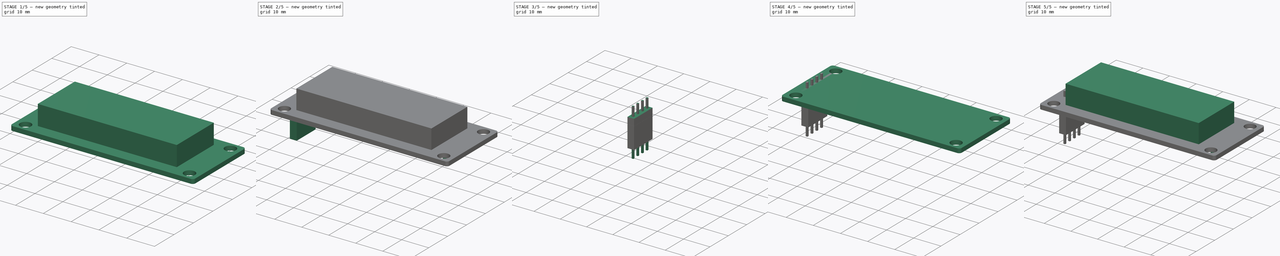
[diagram: build sequence overview — one tinted view per stage of 5, left to right]
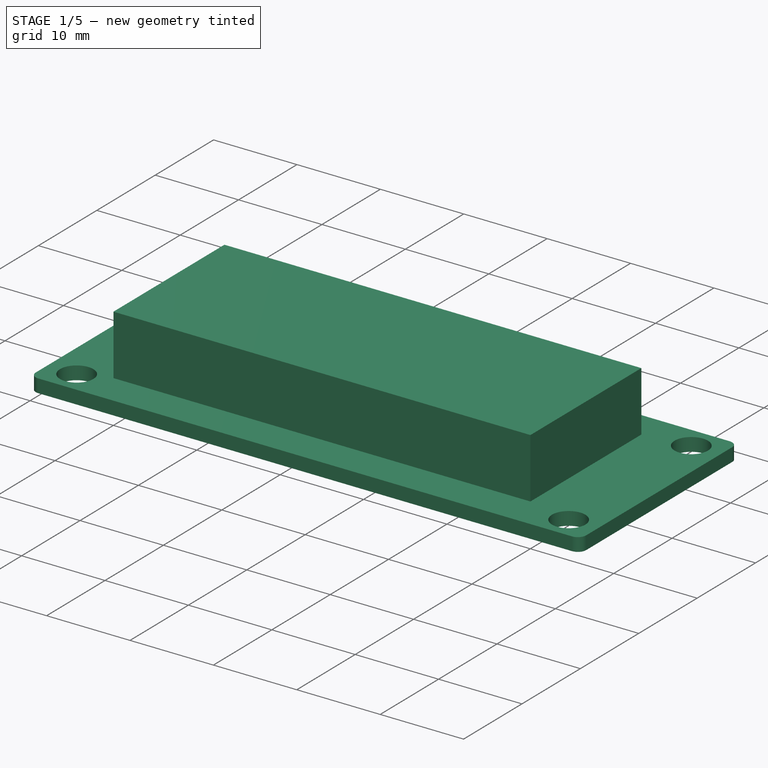
[diagram: stage 1 of 5 — iso view after this stage's code; geometry added in this stage tinted green]
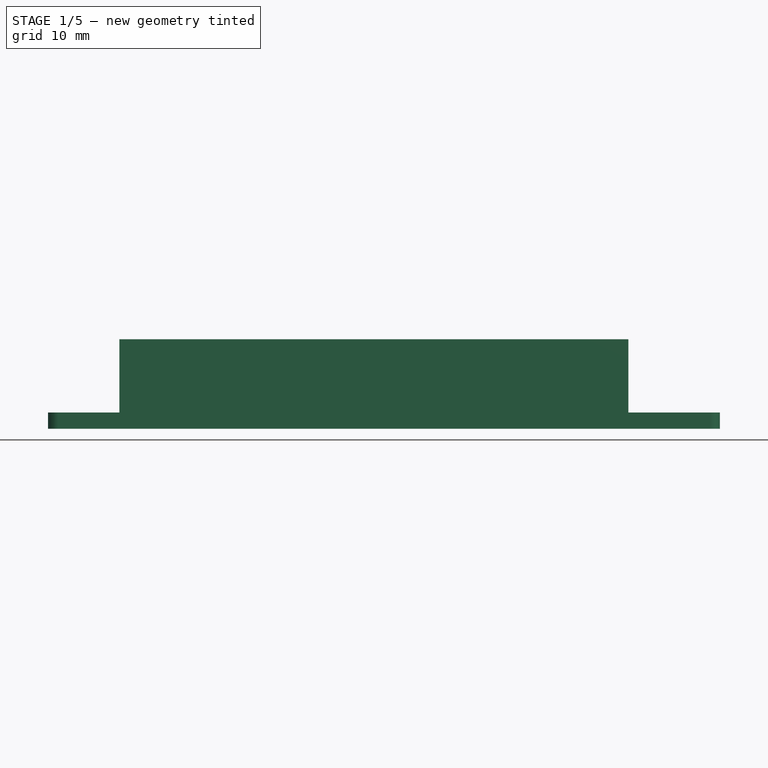
[diagram: stage 1 of 5 — front view after this stage's code; geometry added in this stage tinted green]
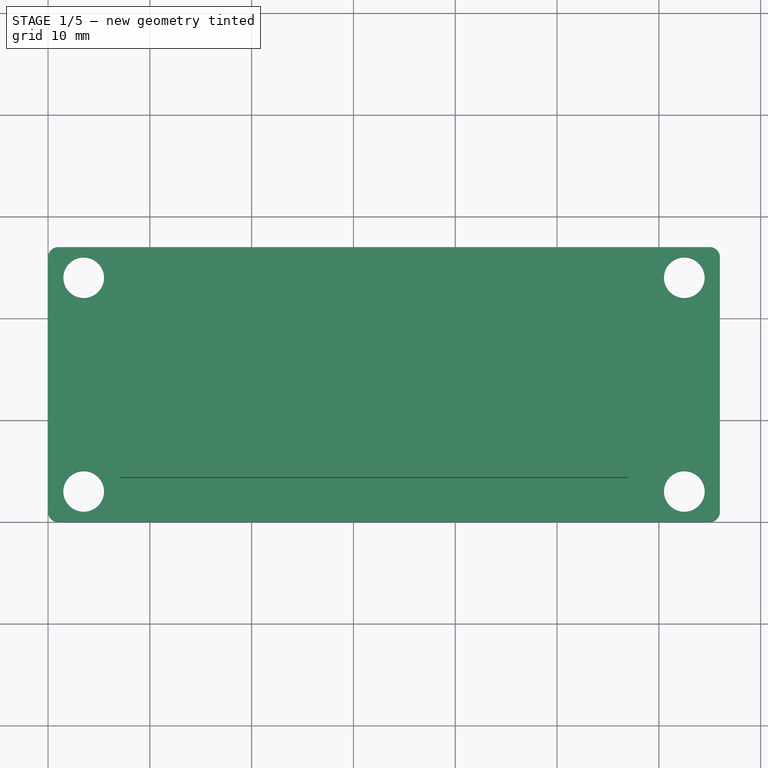
[diagram: stage 1 of 5 — top view after this stage's code; geometry added in this stage tinted green]
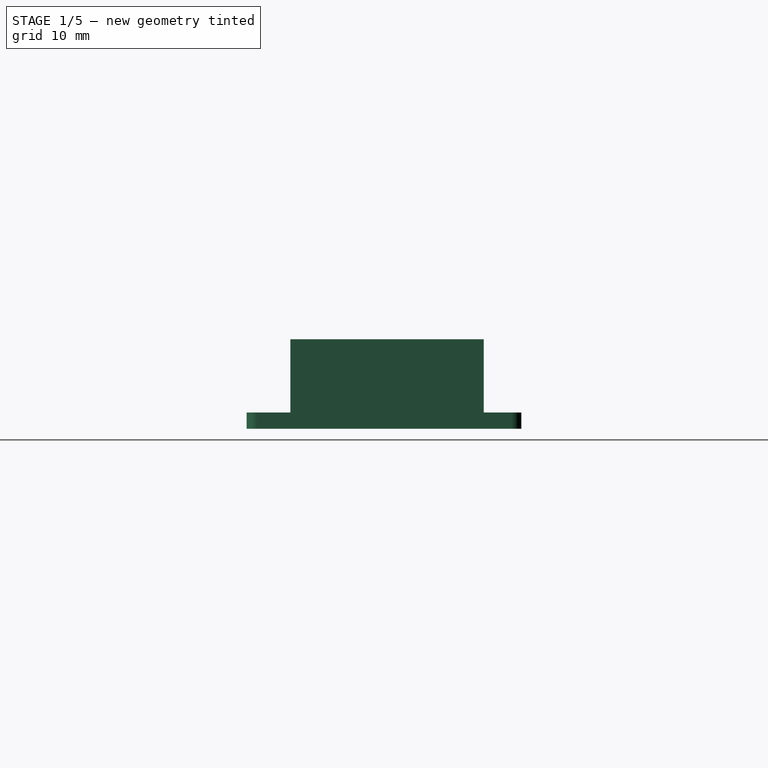
[diagram: stage 1 of 5 — right view after this stage's code; geometry added in this stage tinted green]
FCSTD DOCUMENT  (FreeCAD 0.18R4 (GitTag))
Label: tm1637_module
License: All rights reserved
LicenseURL: http://en.wikipedia.org/wiki/All_rights_reserved
objects: PartDesign::Body×10, Sketcher::SketchObject×9, PartDesign::Pad×8, PartDesign::Fillet×4, PartDesign::FeatureBase×3, Image::ImagePlane×1, Part::Extrusion×1
note: 43 computed .brp shape members not serialized (recipe doc carries the construction recipe); baked Part::Feature solids carry a one-line shape summary decoded from their .brp

FEATURE [Sketcher::SketchObject] Sketch002  label="board"
  sketch-geometry (8):
    g0: Circle CenterX=3.5 CenterY=3 CenterZ=0 NormalX=0 NormalY=0 NormalZ=1 AngleXU=0 Radius=2
    g1: Circle CenterX=3.5 CenterY=24 CenterZ=0 NormalX=0 NormalY=0 NormalZ=1 AngleXU=0 Radius=2
    g2: Circle CenterX=62.5 CenterY=24 CenterZ=0 NormalX=0 NormalY=0 NormalZ=1 AngleXU=0 Radius=2
    g3: Circle CenterX=62.5 CenterY=3 CenterZ=0 NormalX=0 NormalY=0 NormalZ=1 AngleXU=0 Radius=2
    g4: LineSegment StartX=0 StartY=0 StartZ=0 EndX=66 EndY=0 EndZ=0
    g5: LineSegment StartX=66 StartY=0 StartZ=0 EndX=66 EndY=27 EndZ=0
    g6: LineSegment StartX=66 StartY=27 StartZ=0 EndX=0 EndY=27 EndZ=0
    g7: LineSegment StartX=0 StartY=27 StartZ=0 EndX=0 EndY=0 EndZ=0
  constraints (14):
    c: Radius(g0) = 2
    c: Distance(g0,g-1) = 3
    c: Equal(g0,g1) = 2
    c: Distance(g3,g-1) = 3
    c: Coincident(g4,g5)
    c: Coincident(g5,g6)
    c: Coincident(g6,g7)
    c: Coincident(g7,g4)
    c: Horizontal(g4)
    c: Horizontal(g6)
    c: Vertical(g5)
    c: Vertical(g7)
    c: DistanceY(g7,g7) = 27
    c: DistanceX(g6,g6) = 66
FEATURE [PartDesign::Pad] Pad
  Length = 1.6
  Length2 = 100
  Profile = -> Sketch002
  Type = 0
FEATURE [PartDesign::Fillet] Fillet
  Base = -> Pad [Edge1,Edge8,Edge2,Edge5]
  BaseFeature = -> Pad
  Radius = 1
FEATURE [Sketcher::SketchObject] Sketch  label="led"
  AttachmentOffset = pos=(0,0,1.6) rot=(0,0,1;0rad)
  ExternalGeometry = -> [Fillet]
  MapMode = 5
  Placement = pos=(0,0,1.6) rot=(0,0,1;0rad)
  Support = -> [XY_Plane001]
  sketch-geometry (4):
    g0: LineSegment StartX=7 StartY=23.3 StartZ=0 EndX=57 EndY=23.3 EndZ=0
    g1: LineSegment StartX=57 StartY=23.3 StartZ=0 EndX=57 EndY=4.3 EndZ=0
    g2: LineSegment StartX=57 StartY=4.3 StartZ=0 EndX=7 EndY=4.3 EndZ=0
    g3: LineSegment StartX=7 StartY=4.3 StartZ=0 EndX=7 EndY=23.3 EndZ=0
  constraints (12):
    c: Coincident(g0,g1)
    c: Coincident(g1,g2)
    c: Coincident(g2,g3)
    c: Coincident(g3,g0)
    c: Horizontal(g0)
    c: Horizontal(g2)
    c: Vertical(g1)
    c: Vertical(g3)
    c: DistanceX(g0,g0) = 50
    c: DistanceY(g3,g3) = 19
    c: Distance(g2,g-2) = 7
    c: Distance(g0,g-4) = 3.7
FEATURE [PartDesign::Pad] Pad001
  BaseFeature = -> Fillet
  Length = 7.2
  Length2 = 100
  Profile = -> Sketch
  Type = 0
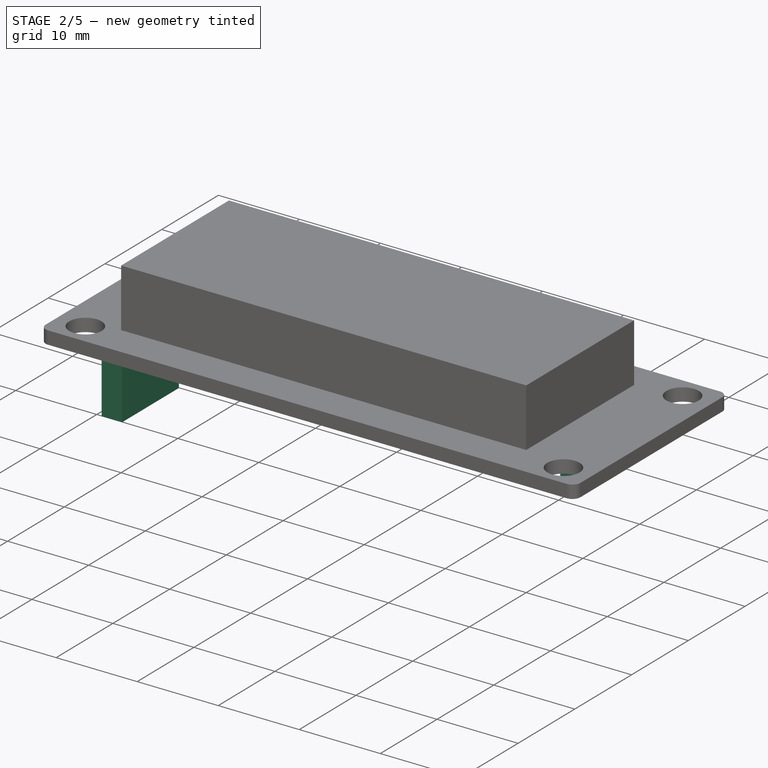
[diagram: stage 2 of 5 — iso view after this stage's code; geometry added in this stage tinted green]
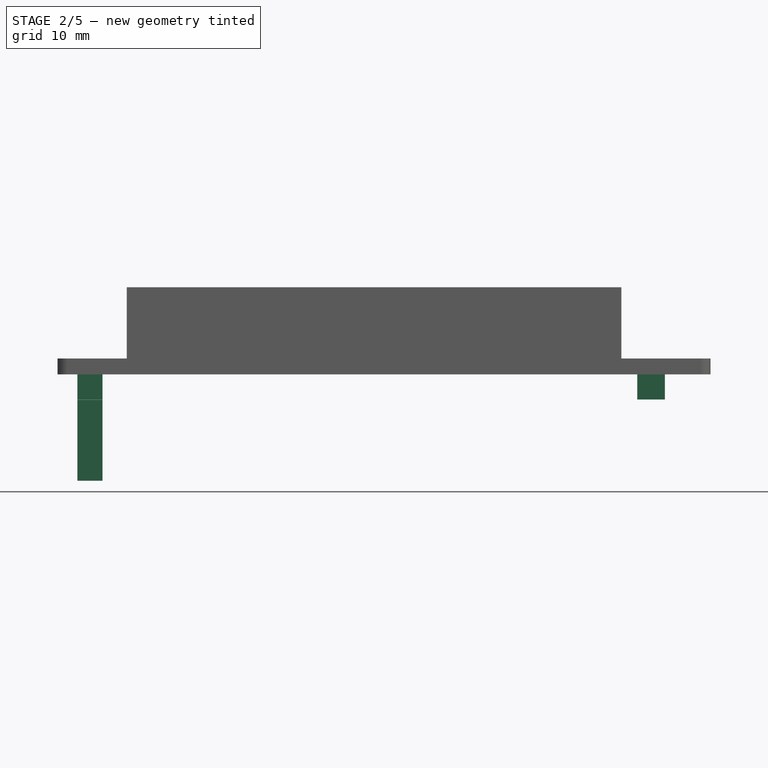
[diagram: stage 2 of 5 — front view after this stage's code; geometry added in this stage tinted green]
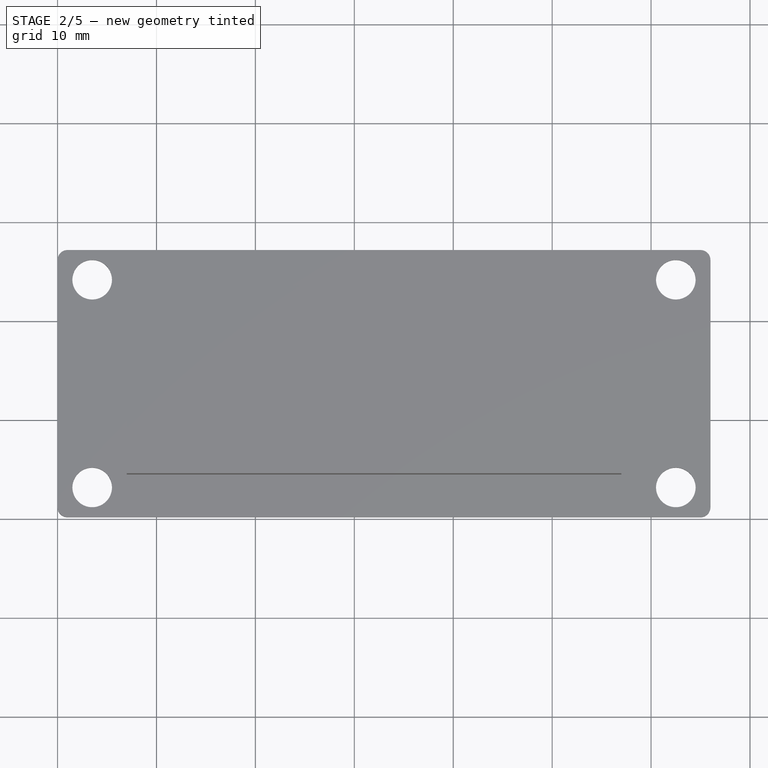
[diagram: stage 2 of 5 — top view after this stage's code; geometry added in this stage tinted green]
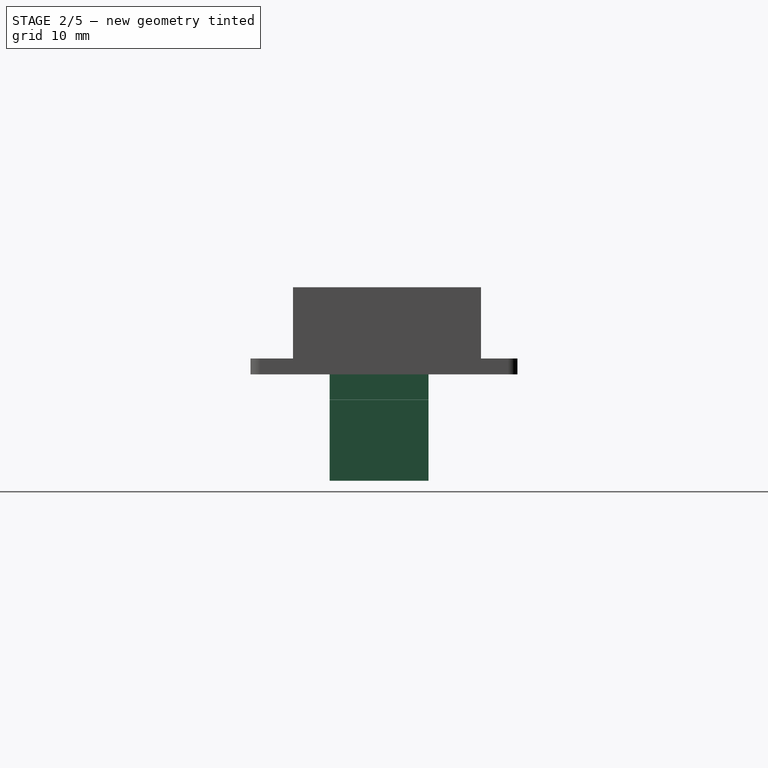
[diagram: stage 2 of 5 — right view after this stage's code; geometry added in this stage tinted green]
FEATURE [Sketcher::SketchObject] Sketch003  label="pins_0"
  ExternalGeometry = -> [Pad001]
  MapMode = 5
  Support = -> [XY_Plane001]
  sketch-geometry (8):
    g0: LineSegment StartX=2 StartY=18 StartZ=0 EndX=4.54 EndY=18 EndZ=0
    g1: LineSegment StartX=4.54 StartY=18 StartZ=0 EndX=4.54 EndY=8 EndZ=0
    g2: LineSegment StartX=4.54 StartY=8 StartZ=0 EndX=2 EndY=8 EndZ=0
    g3: LineSegment StartX=2 StartY=8 StartZ=0 EndX=2 EndY=18 EndZ=0
    g4: LineSegment StartX=58.6 StartY=18 StartZ=0 EndX=61.4 EndY=18 EndZ=0
    g5: LineSegment StartX=61.4 StartY=18 StartZ=0 EndX=61.4 EndY=8 EndZ=0
    g6: LineSegment StartX=61.4 StartY=8 StartZ=0 EndX=58.6 EndY=8 EndZ=0
    g7: LineSegment StartX=58.6 StartY=8 StartZ=0 EndX=58.6 EndY=18 EndZ=0
  constraints (21):
    c: Coincident(g0,g1)
    c: Coincident(g1,g2)
    c: Coincident(g2,g3)
    c: Coincident(g3,g0)
    c: Horizontal(g0)
    c: Horizontal(g2)
    c: Vertical(g1)
    c: Vertical(g3)
    c: DistanceY(g3,g3) = 10
    c: DistanceX(g0,g0) = 2.54
    c: Distance(g0,g-2) = 2
    c: Coincident(g4,g5)
    c: Coincident(g5,g6)
    c: Coincident(g6,g7)
    c: Coincident(g7,g4)
    c: Horizontal(g4)
    c: Horizontal(g6)
    c: Vertical(g5)
    c: Vertical(g7)
    c: DistanceX(g4,g4) = 2.8
    c: DistanceY(g7,g7) = 10
FEATURE [PartDesign::Pad] Pad002
  BaseFeature = -> Pad001
  Length = 2.54
  Length2 = 100
  Profile = -> Sketch003
  Reversed = true
  Type = 0
FEATURE [PartDesign::Body] Body004  label="pin_plastic_clone"
  Group = -> [Clone]
  Origin = -> Origin004
  Placement = pos=(57.62,0,0) rot=(0,0,1;0rad)
  Tip = -> Clone
FEATURE [PartDesign::Pad] Pad007
  Length = 8.2
  Length2 = 100
  Profile = -> Sketch007
  Reversed = true
  Type = 0
FEATURE [PartDesign::Body] Body008  label="extrude_clone"
  Group = -> [Clone001]
  Origin = -> Origin008
  Placement = pos=(57.6,0,0) rot=(0,0,1;0rad)
  Tip = -> Clone001
FEATURE [PartDesign::FeatureBase] Clone002
  BaseFeature = -> Body007
  Placement = pos=(0,0,-2.55) rot=(0,0,1;0rad)
FEATURE [PartDesign::Body] Body009  label="pin_plastic_extend_clone"
  Group = -> [Clone002]
  Origin = -> Origin009
  Placement = pos=(57.6,0,0) rot=(0,0,1;0rad)
  Tip = -> Clone002
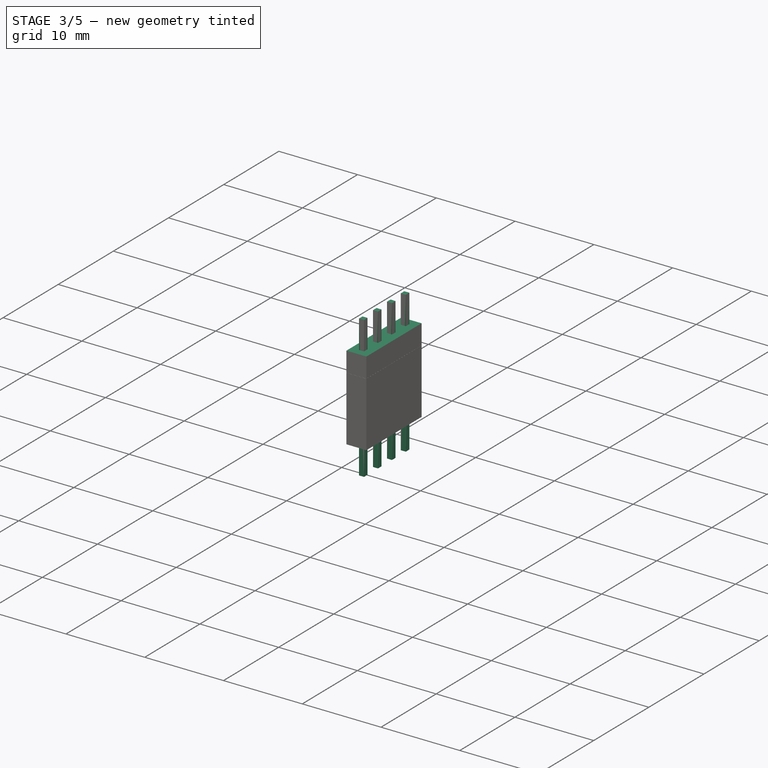
[diagram: stage 3 of 5 — iso view after this stage's code; geometry added in this stage tinted green]
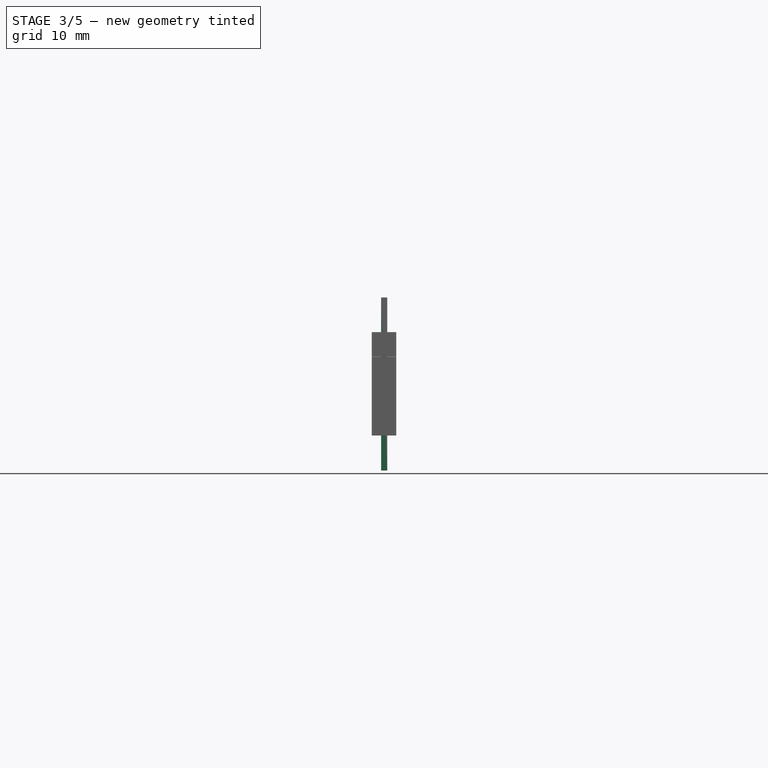
[diagram: stage 3 of 5 — front view after this stage's code; geometry added in this stage tinted green]
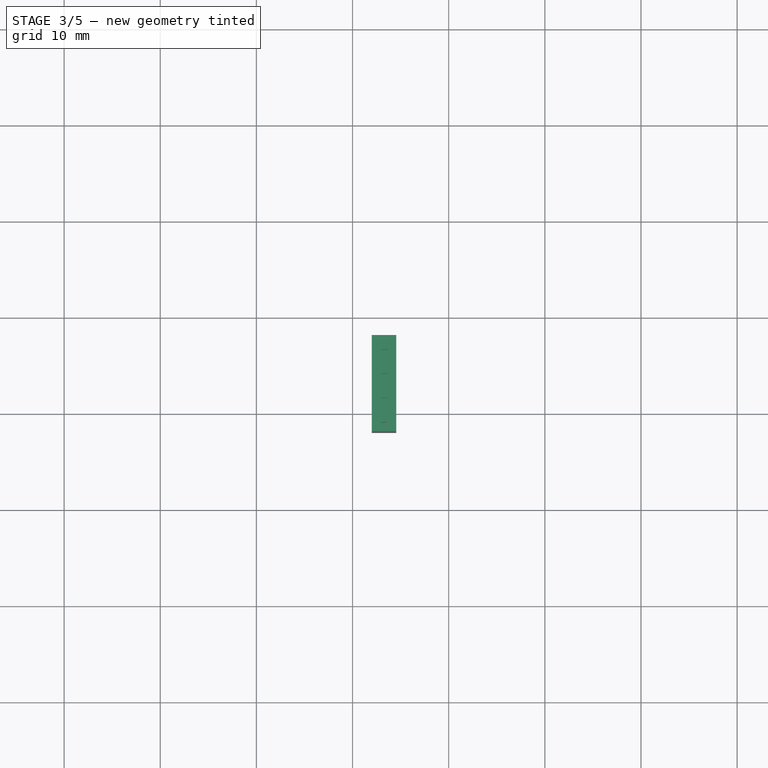
[diagram: stage 3 of 5 — top view after this stage's code; geometry added in this stage tinted green]
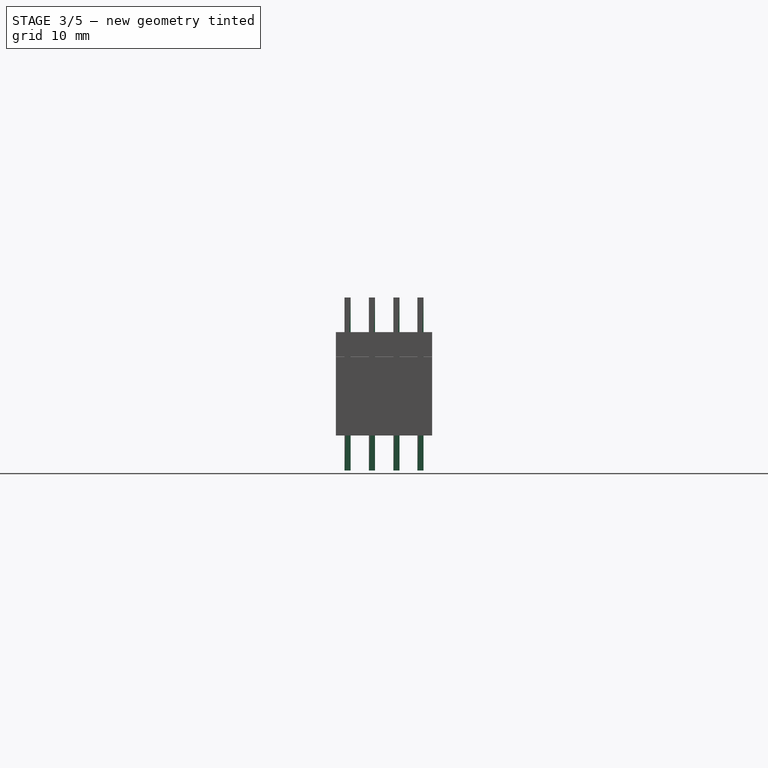
[diagram: stage 3 of 5 — right view after this stage's code; geometry added in this stage tinted green]
FEATURE [PartDesign::Fillet] Fillet001
  Base = -> Pad002 [Edge46,Edge49,Edge47,Edge51,Edge57,Edge54,Edge55,Edge59]
  BaseFeature = -> Pad002
  Radius = 0.5
FEATURE [PartDesign::Body] Body002  label="led001"
  Group = -> [Sketch006,Pad005]
  Origin = -> Origin002
  Tip = -> Pad005
FEATURE [Sketcher::SketchObject] Sketch007  label="pins_001"
  ExternalGeometry = -> [Pad001]
  MapMode = 5
  Support = -> [XY_Plane007]
  sketch-geometry (4):
    g0: LineSegment StartX=2 StartY=18 StartZ=0 EndX=4.54 EndY=18 EndZ=0
    g1: LineSegment StartX=4.54 StartY=18 StartZ=0 EndX=4.54 EndY=8 EndZ=0
    g2: LineSegment StartX=4.54 StartY=8 StartZ=0 EndX=2 EndY=8 EndZ=0
    g3: LineSegment StartX=2 StartY=8 StartZ=0 EndX=2 EndY=18 EndZ=0
  constraints (11):
    c: Coincident(g0,g1)
    c: Coincident(g1,g2)
    c: Coincident(g2,g3)
    c: Coincident(g3,g0)
    c: Horizontal(g0)
    c: Horizontal(g2)
    c: Vertical(g1)
    c: Vertical(g3)
    c: DistanceY(g3,g3) = 10
    c: DistanceX(g0,g0) = 2.54
    c: Distance(g0,g-2) = 2
FEATURE [PartDesign::Pad] Pad006
  Length = 2.54
  Length2 = 100
  Profile = -> Sketch007
  Reversed = true
  Type = 0
FEATURE [PartDesign::Body] Body007  label="pin_plastic_extend"
  Group = -> [Pad007]
  Origin = -> Origin007
  Placement = pos=(0,0,-2.55) rot=(0,0,1;0rad)
  Tip = -> Pad007
FEATURE [Part::Extrusion] Extrude
  Base = -> Sketch008
  Dir = (0,0,1)
  DirMode = 2
  FaceMakerClass = Part::FaceMakerBullseye
  LengthFwd = 18
  LengthRev = 0
  Placement = pos=(0,0,-18) rot=(0,0,1;0rad)
  Solid = true
  Symmetric = false
FEATURE [PartDesign::FeatureBase] Clone001
  BaseFeature = -> Extrude
  Placement = pos=(0,0,-18) rot=(0,0,1;0rad)
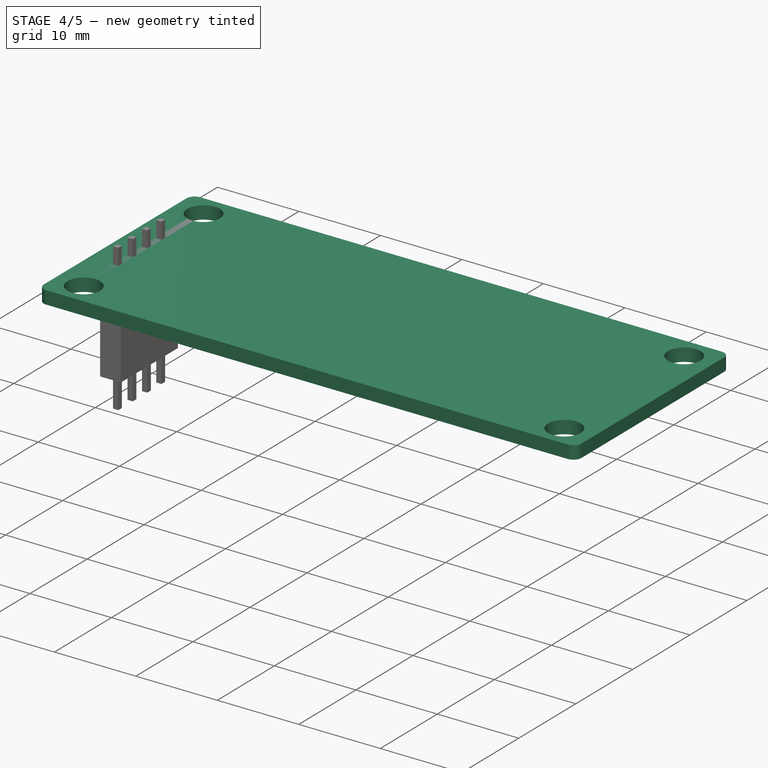
[diagram: stage 4 of 5 — iso view after this stage's code; geometry added in this stage tinted green]
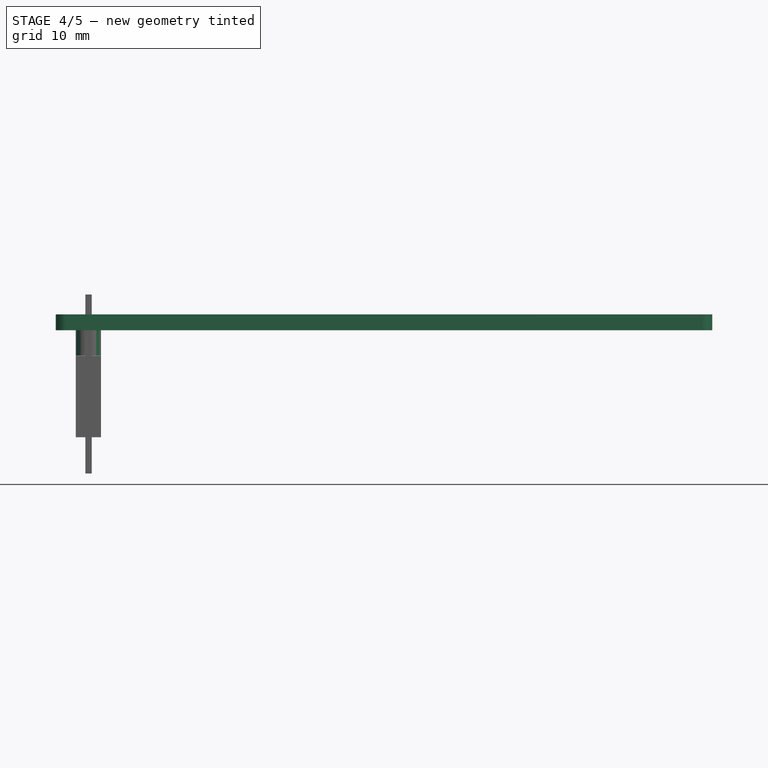
[diagram: stage 4 of 5 — front view after this stage's code; geometry added in this stage tinted green]
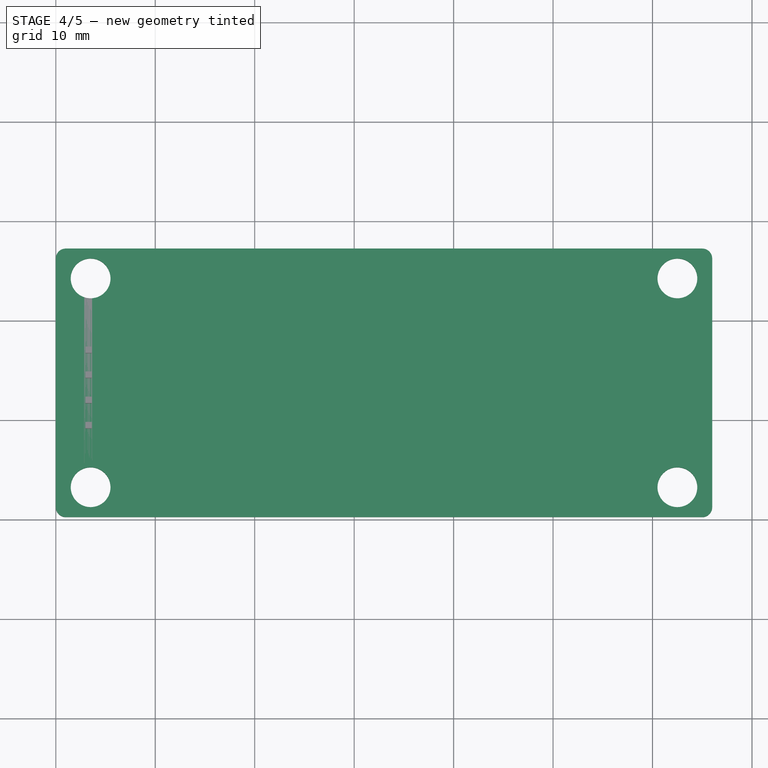
[diagram: stage 4 of 5 — top view after this stage's code; geometry added in this stage tinted green]
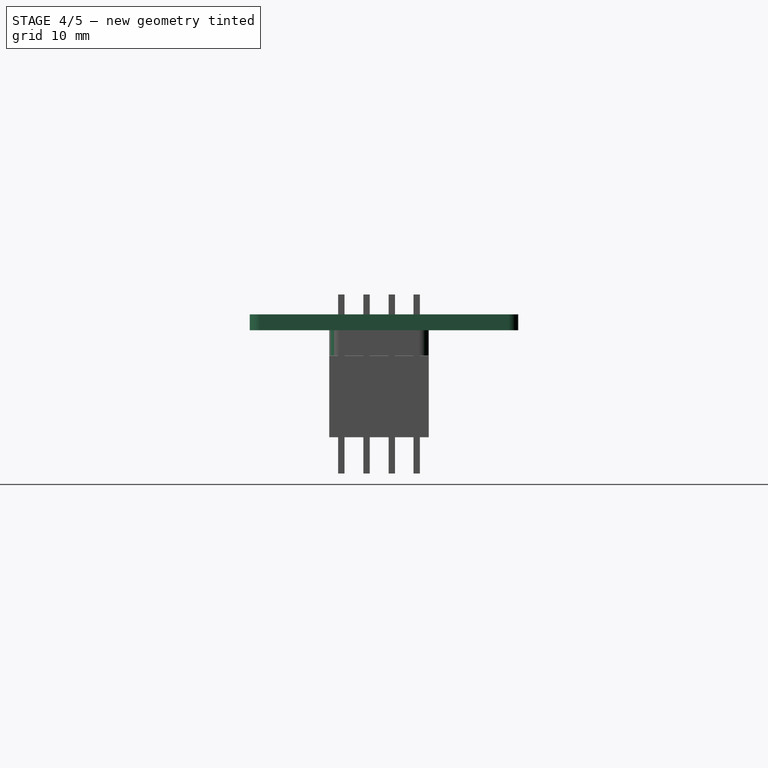
[diagram: stage 4 of 5 — right view after this stage's code; geometry added in this stage tinted green]
FEATURE [PartDesign::Body] Body
  Group = -> [Sketch002,Pad,Fillet,Sketch,Pad001,Sketch003,Pad002,Fillet001,Sketch004,Pad003]
  Origin = -> Origin001
  Tip = -> Pad003
FEATURE [Sketcher::SketchObject] Sketch005  label="board002"
  sketch-geometry (8):
    g0: Circle CenterX=3.5 CenterY=3 CenterZ=0 NormalX=0 NormalY=0 NormalZ=1 AngleXU=0 Radius=2
    g1: Circle CenterX=3.5 CenterY=24 CenterZ=0 NormalX=0 NormalY=0 NormalZ=1 AngleXU=0 Radius=2
    g2: Circle CenterX=62.5 CenterY=24 CenterZ=0 NormalX=0 NormalY=0 NormalZ=1 AngleXU=0 Radius=2
    g3: Circle CenterX=62.5 CenterY=3 CenterZ=0 NormalX=0 NormalY=0 NormalZ=1 AngleXU=0 Radius=2
    g4: LineSegment StartX=0 StartY=0 StartZ=0 EndX=66 EndY=0 EndZ=0
    g5: LineSegment StartX=66 StartY=0 StartZ=0 EndX=66 EndY=27 EndZ=0
    g6: LineSegment StartX=66 StartY=27 StartZ=0 EndX=0 EndY=27 EndZ=0
    g7: LineSegment StartX=0 StartY=27 StartZ=0 EndX=0 EndY=0 EndZ=0
  constraints (14):
    c: Radius(g0) = 2
    c: Distance(g0,g-1) = 3
    c: Equal(g0,g1) = 2
    c: Distance(g3,g-1) = 3
    c: Coincident(g4,g5)
    c: Coincident(g5,g6)
    c: Coincident(g6,g7)
    c: Coincident(g7,g4)
    c: Horizontal(g4)
    c: Horizontal(g6)
    c: Vertical(g5)
    c: Vertical(g7)
    c: DistanceY(g7,g7) = 27
    c: DistanceX(g6,g6) = 66
FEATURE [PartDesign::Pad] Pad004
  Length = 1.6
  Length2 = 100
  Profile = -> Sketch005
  Type = 0
FEATURE [Sketcher::SketchObject] Sketch008
  AttachmentOffset = pos=(0,0,3.6) rot=(0,0,1;0rad)
  ExternalGeometry = -> [Fillet001]
  MapMode = 5
  Placement = pos=(0,0,3.6) rot=(0,0,1;0rad)
  Support = -> [XY_Plane005]
  sketch-geometry (28):
    g0: LineSegment StartX=2.97 StartY=17.11 StartZ=0 EndX=3.61 EndY=17.11 EndZ=0
    g1: LineSegment StartX=3.61 StartY=17.11 StartZ=0 EndX=3.61 EndY=16.47 EndZ=0
    g2: LineSegment StartX=3.61 StartY=16.47 StartZ=0 EndX=2.97 EndY=16.47 EndZ=0
    g3: LineSegment StartX=2.97 StartY=16.47 StartZ=0 EndX=2.97 EndY=17.11 EndZ=0
    g4: LineSegment [constr] StartX=2.97 StartY=17.11 StartZ=0 EndX=3.61 EndY=16.47 EndZ=0
    g5: LineSegment [constr] StartX=3.61 StartY=17.11 StartZ=0 EndX=2.97 EndY=16.47 EndZ=0
    g6: GeomPoint X=3.29 Y=16.79 Z=0
    g7: LineSegment StartX=2.97 StartY=14.61 StartZ=0 EndX=3.61 EndY=14.61 EndZ=0
    g8: LineSegment StartX=3.61 StartY=14.61 StartZ=0 EndX=3.61 EndY=13.97 EndZ=0
    g9: LineSegment StartX=3.61 StartY=13.97 StartZ=0 EndX=2.97 EndY=13.97 EndZ=0
    g10: LineSegment StartX=2.97 StartY=13.97 StartZ=0 EndX=2.97 EndY=14.61 EndZ=0
    g11: LineSegment [constr] StartX=2.97 StartY=14.61 StartZ=0 EndX=3.61 EndY=13.97 EndZ=0
    g12: LineSegment [constr] StartX=3.61 StartY=14.61 StartZ=0 EndX=2.97 EndY=13.97 EndZ=0
    g13: GeomPoint X=3.29 Y=14.29 Z=0
    g14: LineSegment StartX=2.97 StartY=12.07 StartZ=0 EndX=3.61 EndY=12.07 EndZ=0
    g15: LineSegment StartX=3.61 StartY=12.07 StartZ=0 EndX=3.61 EndY=11.43 EndZ=0
    g16: LineSegment StartX=3.61 StartY=11.43 StartZ=0 EndX=2.97 EndY=11.43 EndZ=0
    g17: LineSegment StartX=2.97 StartY=11.43 StartZ=0 EndX=2.97 EndY=12.07 EndZ=0
    g18: LineSegment [constr] StartX=2.97 StartY=12.07 StartZ=0 EndX=3.61 EndY=11.43 EndZ=0
    g19: LineSegment [constr] StartX=3.61 StartY=12.07 StartZ=0 EndX=2.97 EndY=11.43 EndZ=0
    g20: GeomPoint X=3.29 Y=11.75 Z=0
    g21: LineSegment StartX=2.97 StartY=9.53 StartZ=0 EndX=3.61 EndY=9.53 EndZ=0
    g22: LineSegment StartX=3.61 StartY=9.53 StartZ=0 EndX=3.61 EndY=8.89 EndZ=0
    g23: LineSegment StartX=3.61 StartY=8.89 StartZ=0 EndX=2.97 EndY=8.89 EndZ=0
    g24: LineSegment StartX=2.97 StartY=8.89 StartZ=0 EndX=2.97 EndY=9.53 EndZ=0
    g25: LineSegment [constr] StartX=2.97 StartY=9.53 StartZ=0 EndX=3.61 EndY=8.89 EndZ=0
    g26: LineSegment [constr] StartX=3.61 StartY=9.53 StartZ=0 EndX=2.97 EndY=8.89 EndZ=0
    g27: GeomPoint X=3.29 Y=9.21 Z=0
  constraints (72):
    c: Coincident(g0,g1)
    c: Coincident(g1,g2)
    c: Coincident(g2,g3)
    c: Coincident(g3,g0)
    c: Horizontal(g0)
    c: Horizontal(g2)
    c: Vertical(g1)
    c: Vertical(g3)
    c: DistanceX(g0,g0) = 0.64
    c: Equal(g0,g1)
    c: Coincident(g0,g5)
    c: Coincident(g0,g4)
    c: Coincident(g1,g4)
    c: Coincident(g2,g5)
    c: PointOnObject(g6,g4)
    c: PointOnObject(g6,g5)
    c: Distance(g6,g-3) = 1.21
    c: Distance(g6,g-6) = 1.25
    c: Coincident(g7,g8)
    c: Coincident(g8,g9)
    c: Coincident(g9,g10)
    c: Coincident(g10,g7)
    c: Horizontal(g7)
    c: Horizontal(g9)
    c: Vertical(g8)
    c: Vertical(g10)
    c: Equal(g0,g7) = 0.64
    c: Equal(g7,g8)
    c: Coincident(g7,g12)
    c: Coincident(g7,g11)
    c: Coincident(g8,g11)
    c: Coincident(g9,g12)
    c: PointOnObject(g13,g11)
    c: PointOnObject(g13,g12)
    c: Distance(g6,g13) = 2.5
    c: Coincident(g14,g15)
    c: Coincident(g15,g16)
    c: Coincident(g16,g17)
    c: Coincident(g17,g14)
    c: Horizontal(g14)
    c: Horizontal(g16)
    c: Vertical(g15)
    c: Vertical(g17)
    c: Equal(g14,g15)
    c: Coincident(g14,g19)
    c: Coincident(g14,g18)
    c: Coincident(g15,g18)
    c: Coincident(g16,g19)
    c: PointOnObject(g20,g18)
    c: PointOnObject(g20,g19)
    c: Coincident(g21,g22)
    c: Coincident(g22,g23)
    c: Coincident(g23,g24)
    c: Coincident(g24,g21)
    c: Horizontal(g21)
    c: Horizontal(g23)
    c: Vertical(g22)
    c: Vertical(g24)
    c: Equal(g21,g22)
    c: Coincident(g21,g26)
    c: Coincident(g21,g25)
    c: Coincident(g22,g25)
    c: Coincident(g23,g26)
    c: PointOnObject(g27,g25)
    c: PointOnObject(g27,g26)
    c: Distance(g13,g20) = 2.54
    c: DistanceX(g14,g14) = 0.64
    c: DistanceX(g21,g21) = 0.64
    c: Distance(g13,g-6) = 1.25
    c: Distance(g20,g-6) = 1.25
    c: Distance(g27,g-6) = 1.25
    c: Distance(g20,g27) = 2.54
FEATURE [PartDesign::Body] Body005  label="pins"
  Group = -> [Sketch008]
  Origin = -> Origin005
FEATURE [Sketcher::SketchObject] Sketch009
  AttachmentOffset = pos=(0,0,3.6) rot=(0,0,1;0rad)
  ExternalGeometry = -> [Fillet001]
  MapMode = 5
  Placement = pos=(0,0,3.6) rot=(0,0,1;0rad)
  Support = -> [XY_Plane006]
  sketch-geometry (28):
    g0: LineSegment StartX=2.97 StartY=17.11 StartZ=0 EndX=3.61 EndY=17.11 EndZ=0
    g1: LineSegment StartX=3.61 StartY=17.11 StartZ=0 EndX=3.61 EndY=16.47 EndZ=0
    g2: LineSegment StartX=3.61 StartY=16.47 StartZ=0 EndX=2.97 EndY=16.47 EndZ=0
    g3: LineSegment StartX=2.97 StartY=16.47 StartZ=0 EndX=2.97 EndY=17.11 EndZ=0
    g4: LineSegment [constr] StartX=2.97 StartY=17.11 StartZ=0 EndX=3.61 EndY=16.47 EndZ=0
    g5: LineSegment [constr] StartX=3.61 StartY=17.11 StartZ=0 EndX=2.97 EndY=16.47 EndZ=0
    g6: GeomPoint X=3.29 Y=16.79 Z=0
    g7: LineSegment StartX=2.97 StartY=14.61 StartZ=0 EndX=3.61 EndY=14.61 EndZ=0
    g8: LineSegment StartX=3.61 StartY=14.61 StartZ=0 EndX=3.61 EndY=13.97 EndZ=0
    g9: LineSegment StartX=3.61 StartY=13.97 StartZ=0 EndX=2.97 EndY=13.97 EndZ=0
    g10: LineSegment StartX=2.97 StartY=13.97 StartZ=0 EndX=2.97 EndY=14.61 EndZ=0
    g11: LineSegment [constr] StartX=2.97 StartY=14.61 StartZ=0 EndX=3.61 EndY=13.97 EndZ=0
    g12: LineSegment [constr] StartX=3.61 StartY=14.61 StartZ=0 EndX=2.97 EndY=13.97 EndZ=0
    g13: GeomPoint X=3.29 Y=14.29 Z=0
    g14: LineSegment StartX=2.97 StartY=12.07 StartZ=0 EndX=3.61 EndY=12.07 EndZ=0
    g15: LineSegment StartX=3.61 StartY=12.07 StartZ=0 EndX=3.61 EndY=11.43 EndZ=0
    g16: LineSegment StartX=3.61 StartY=11.43 StartZ=0 EndX=2.97 EndY=11.43 EndZ=0
    g17: LineSegment StartX=2.97 StartY=11.43 StartZ=0 EndX=2.97 EndY=12.07 EndZ=0
    g18: LineSegment [constr] StartX=2.97 StartY=12.07 StartZ=0 EndX=3.61 EndY=11.43 EndZ=0
    g19: LineSegment [constr] StartX=3.61 StartY=12.07 StartZ=0 EndX=2.97 EndY=11.43 EndZ=0
    g20: GeomPoint X=3.29 Y=11.75 Z=0
    g21: LineSegment StartX=2.97 StartY=9.53 StartZ=0 EndX=3.61 EndY=9.53 EndZ=0
    g22: LineSegment StartX=3.61 StartY=9.53 StartZ=0 EndX=3.61 EndY=8.89 EndZ=0
    g23: LineSegment StartX=3.61 StartY=8.89 StartZ=0 EndX=2.97 EndY=8.89 EndZ=0
    g24: LineSegment StartX=2.97 StartY=8.89 StartZ=0 EndX=2.97 EndY=9.53 EndZ=0
    g25: LineSegment [constr] StartX=2.97 StartY=9.53 StartZ=0 EndX=3.61 EndY=8.89 EndZ=0
    g26: LineSegment [constr] StartX=3.61 StartY=9.53 StartZ=0 EndX=2.97 EndY=8.89 EndZ=0
    g27: GeomPoint X=3.29 Y=9.21 Z=0
  constraints (72):
    c: Coincident(g0,g1)
    c: Coincident(g1,g2)
    c: Coincident(g2,g3)
    c: Coincident(g3,g0)
    c: Horizontal(g0)
    c: Horizontal(g2)
    c: Vertical(g1)
    c: Vertical(g3)
    c: DistanceX(g0,g0) = 0.64
    c: Equal(g0,g1)
    c: Coincident(g0,g5)
    c: Coincident(g0,g4)
    c: Coincident(g1,g4)
    c: Coincident(g2,g5)
    c: PointOnObject(g6,g4)
    c: PointOnObject(g6,g5)
    c: Distance(g6,g-3) = 1.21
    c: Distance(g6,g-6) = 1.25
    c: Coincident(g7,g8)
    c: Coincident(g8,g9)
    c: Coincident(g9,g10)
    c: Coincident(g10,g7)
    c: Horizontal(g7)
    c: Horizontal(g9)
    c: Vertical(g8)
    c: Vertical(g10)
    c: Equal(g0,g7) = 0.64
    c: Equal(g7,g8)
    c: Coincident(g7,g12)
    c: Coincident(g7,g11)
    c: Coincident(g8,g11)
    c: Coincident(g9,g12)
    c: PointOnObject(g13,g11)
    c: PointOnObject(g13,g12)
    c: Distance(g6,g13) = 2.5
    c: Coincident(g14,g15)
    c: Coincident(g15,g16)
    c: Coincident(g16,g17)
    c: Coincident(g17,g14)
    c: Horizontal(g14)
    c: Horizontal(g16)
    c: Vertical(g15)
    c: Vertical(g17)
    c: Equal(g14,g15)
    c: Coincident(g14,g19)
    c: Coincident(g14,g18)
    c: Coincident(g15,g18)
    c: Coincident(g16,g19)
    c: PointOnObject(g20,g18)
    c: PointOnObject(g20,g19)
    c: Coincident(g21,g22)
    c: Coincident(g22,g23)
    c: Coincident(g23,g24)
    c: Coincident(g24,g21)
    c: Horizontal(g21)
    c: Horizontal(g23)
    c: Vertical(g22)
    c: Vertical(g24)
    c: Equal(g21,g22)
    c: Coincident(g21,g26)
    c: Coincident(g21,g25)
    c: Coincident(g22,g25)
    c: Coincident(g23,g26)
    c: PointOnObject(g27,g25)
    c: PointOnObject(g27,g26)
    c: Distance(g13,g20) = 2.54
    c: DistanceX(g14,g14) = 0.64
    c: DistanceX(g21,g21) = 0.64
    c: Distance(g13,g-6) = 1.25
    c: Distance(g20,g-6) = 1.25
    c: Distance(g27,g-6) = 1.25
    c: Distance(g20,g27) = 2.54
FEATURE [PartDesign::Body] Body006  label="pins001"
  Group = -> [Sketch009]
  Origin = -> Origin006
  Placement = pos=(57.56,0,0) rot=(0,0,1;0rad)
FEATURE [Image::ImagePlane] ImagePlane
  Placement = pos=(32,13.6,9) rot=(0,0,1;0rad)
  XSize = 50
  YSize = 19
FEATURE [PartDesign::Fillet] Fillet002
  Base = -> Pad004 [Edge8,Edge1,Edge2,Edge5]
  BaseFeature = -> Pad004
  Radius = 1
FEATURE [PartDesign::Body] Body001  label="board001"
  Group = -> [Pad004,Sketch005,Fillet002]
  Origin = -> Origin
  Tip = -> Fillet002
FEATURE [PartDesign::Fillet] Fillet003
  Base = -> Pad006 [Edge8,Edge1,Edge5,Edge2]
  BaseFeature = -> Pad006
  Radius = 1
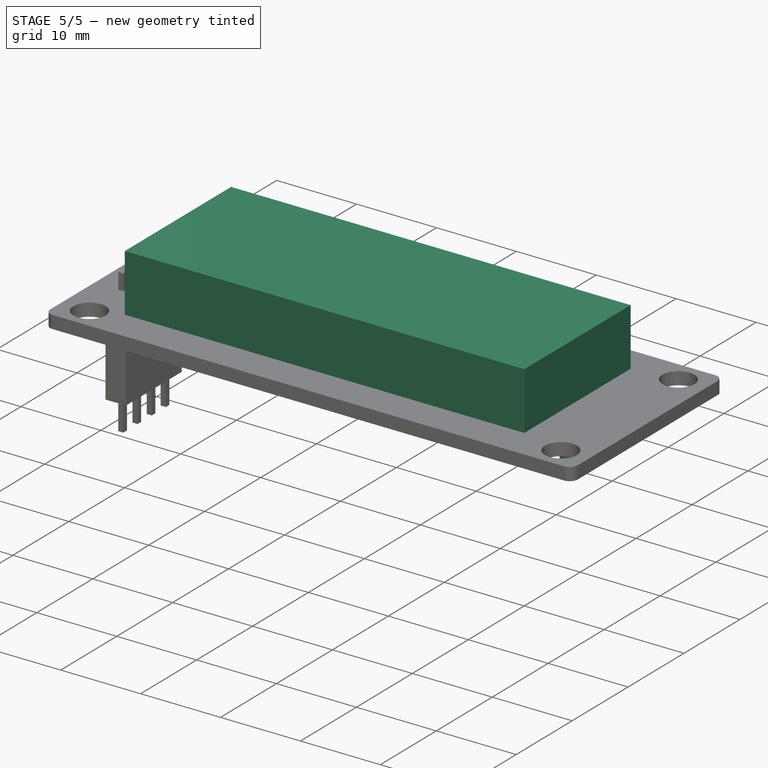
[diagram: stage 5 of 5 — iso view after this stage's code; geometry added in this stage tinted green]
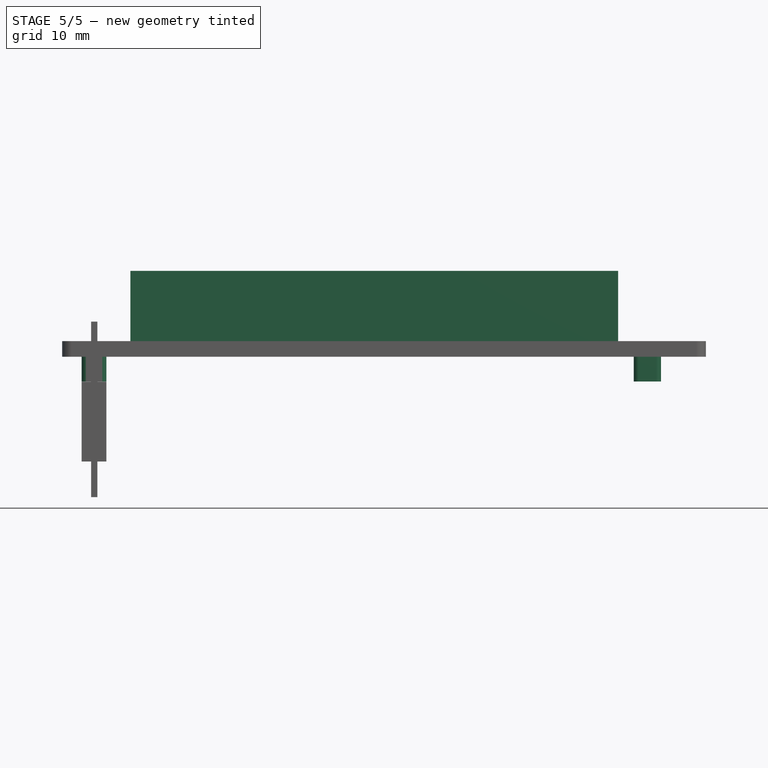
[diagram: stage 5 of 5 — front view after this stage's code; geometry added in this stage tinted green]
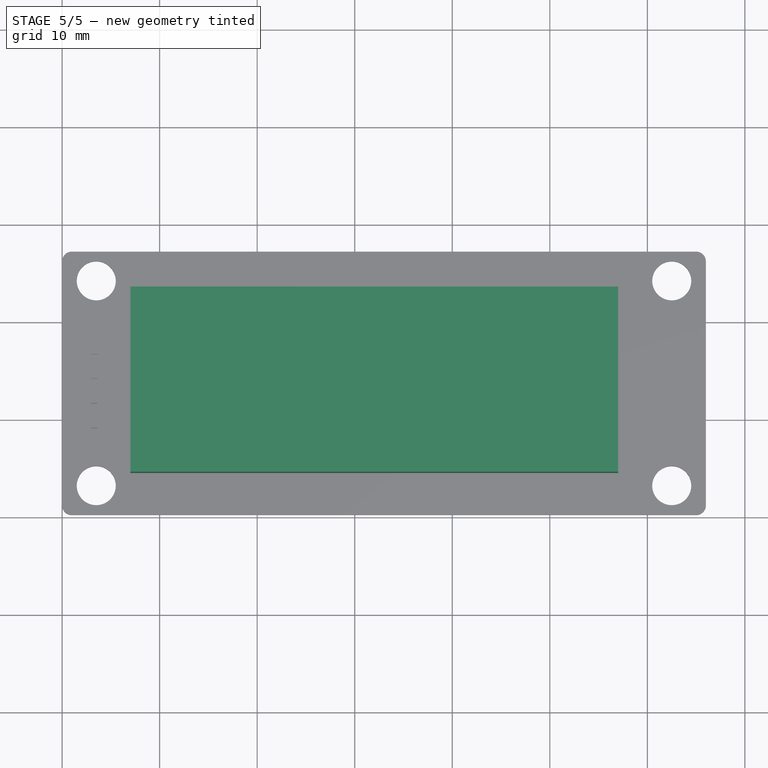
[diagram: stage 5 of 5 — top view after this stage's code; geometry added in this stage tinted green]
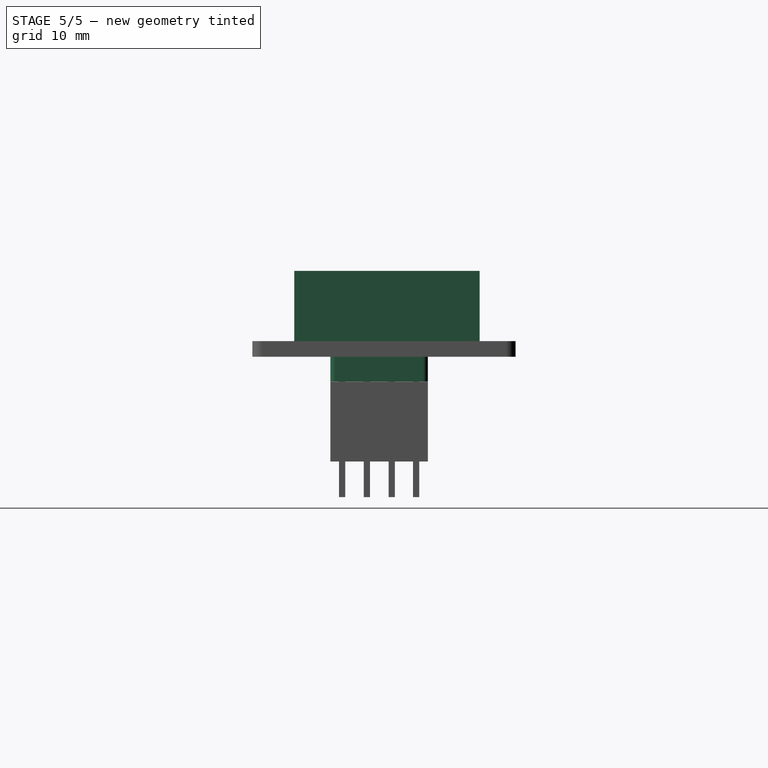
[diagram: stage 5 of 5 — right view after this stage's code; geometry added in this stage tinted green]
FEATURE [Sketcher::SketchObject] Sketch004
  AttachmentOffset = pos=(0,0,3.6) rot=(0,0,1;0rad)
  ExternalGeometry = -> [Fillet001]
  MapMode = 5
  Placement = pos=(0,0,3.6) rot=(0,0,1;0rad)
  Support = -> [XY_Plane001]
  sketch-geometry (28):
    g0: LineSegment StartX=2.97 StartY=17.11 StartZ=0 EndX=3.61 EndY=17.11 EndZ=0
    g1: LineSegment StartX=3.61 StartY=17.11 StartZ=0 EndX=3.61 EndY=16.47 EndZ=0
    g2: LineSegment StartX=3.61 StartY=16.47 StartZ=0 EndX=2.97 EndY=16.47 EndZ=0
    g3: LineSegment StartX=2.97 StartY=16.47 StartZ=0 EndX=2.97 EndY=17.11 EndZ=0
    g4: LineSegment [constr] StartX=2.97 StartY=17.11 StartZ=0 EndX=3.61 EndY=16.47 EndZ=0
    g5: LineSegment [constr] StartX=3.61 StartY=17.11 StartZ=0 EndX=2.97 EndY=16.47 EndZ=0
    g6: GeomPoint X=3.29 Y=16.79 Z=0
    g7: LineSegment StartX=2.97 StartY=14.61 StartZ=0 EndX=3.61 EndY=14.61 EndZ=0
    g8: LineSegment StartX=3.61 StartY=14.61 StartZ=0 EndX=3.61 EndY=13.97 EndZ=0
    g9: LineSegment StartX=3.61 StartY=13.97 StartZ=0 EndX=2.97 EndY=13.97 EndZ=0
    g10: LineSegment StartX=2.97 StartY=13.97 StartZ=0 EndX=2.97 EndY=14.61 EndZ=0
    g11: LineSegment [constr] StartX=2.97 StartY=14.61 StartZ=0 EndX=3.61 EndY=13.97 EndZ=0
    g12: LineSegment [constr] StartX=3.61 StartY=14.61 StartZ=0 EndX=2.97 EndY=13.97 EndZ=0
    g13: GeomPoint X=3.29 Y=14.29 Z=0
    g14: LineSegment StartX=2.97 StartY=12.07 StartZ=0 EndX=3.61 EndY=12.07 EndZ=0
    g15: LineSegment StartX=3.61 StartY=12.07 StartZ=0 EndX=3.61 EndY=11.43 EndZ=0
    g16: LineSegment StartX=3.61 StartY=11.43 StartZ=0 EndX=2.97 EndY=11.43 EndZ=0
    g17: LineSegment StartX=2.97 StartY=11.43 StartZ=0 EndX=2.97 EndY=12.07 EndZ=0
    g18: LineSegment [constr] StartX=2.97 StartY=12.07 StartZ=0 EndX=3.61 EndY=11.43 EndZ=0
    g19: LineSegment [constr] StartX=3.61 StartY=12.07 StartZ=0 EndX=2.97 EndY=11.43 EndZ=0
    g20: GeomPoint X=3.29 Y=11.75 Z=0
    g21: LineSegment StartX=2.97 StartY=9.53 StartZ=0 EndX=3.61 EndY=9.53 EndZ=0
    g22: LineSegment StartX=3.61 StartY=9.53 StartZ=0 EndX=3.61 EndY=8.89 EndZ=0
    g23: LineSegment StartX=3.61 StartY=8.89 StartZ=0 EndX=2.97 EndY=8.89 EndZ=0
    g24: LineSegment StartX=2.97 StartY=8.89 StartZ=0 EndX=2.97 EndY=9.53 EndZ=0
    g25: LineSegment [constr] StartX=2.97 StartY=9.53 StartZ=0 EndX=3.61 EndY=8.89 EndZ=0
    g26: LineSegment [constr] StartX=3.61 StartY=9.53 StartZ=0 EndX=2.97 EndY=8.89 EndZ=0
    g27: GeomPoint X=3.29 Y=9.21 Z=0
  constraints (72):
    c: Coincident(g0,g1)
    c: Coincident(g1,g2)
    c: Coincident(g2,g3)
    c: Coincident(g3,g0)
    c: Horizontal(g0)
    c: Horizontal(g2)
    c: Vertical(g1)
    c: Vertical(g3)
    c: DistanceX(g0,g0) = 0.64
    c: Equal(g0,g1)
    c: Coincident(g0,g5)
    c: Coincident(g0,g4)
    c: Coincident(g1,g4)
    c: Coincident(g2,g5)
    c: PointOnObject(g6,g4)
    c: PointOnObject(g6,g5)
    c: Distance(g6,g-3) = 1.21
    c: Distance(g6,g-6) = 1.25
    c: Coincident(g7,g8)
    c: Coincident(g8,g9)
    c: Coincident(g9,g10)
    c: Coincident(g10,g7)
    c: Horizontal(g7)
    c: Horizontal(g9)
    c: Vertical(g8)
    c: Vertical(g10)
    c: Equal(g0,g7) = 0.64
    c: Equal(g7,g8)
    c: Coincident(g7,g12)
    c: Coincident(g7,g11)
    c: Coincident(g8,g11)
    c: Coincident(g9,g12)
    c: PointOnObject(g13,g11)
    c: PointOnObject(g13,g12)
    c: Distance(g6,g13) = 2.5
    c: Coincident(g14,g15)
    c: Coincident(g15,g16)
    c: Coincident(g16,g17)
    c: Coincident(g17,g14)
    c: Horizontal(g14)
    c: Horizontal(g16)
    c: Vertical(g15)
    c: Vertical(g17)
    c: Equal(g14,g15)
    c: Coincident(g14,g19)
    c: Coincident(g14,g18)
    c: Coincident(g15,g18)
    c: Coincident(g16,g19)
    c: PointOnObject(g20,g18)
    c: PointOnObject(g20,g19)
    c: Coincident(g21,g22)
    c: Coincident(g22,g23)
    c: Coincident(g23,g24)
    c: Coincident(g24,g21)
    c: Horizontal(g21)
    c: Horizontal(g23)
    c: Vertical(g22)
    c: Vertical(g24)
    c: Equal(g21,g22)
    c: Coincident(g21,g26)
    c: Coincident(g21,g25)
    c: Coincident(g22,g25)
    c: Coincident(g23,g26)
    c: PointOnObject(g27,g25)
    c: PointOnObject(g27,g26)
    c: Distance(g13,g20) = 2.54
    c: DistanceX(g14,g14) = 0.64
    c: DistanceX(g21,g21) = 0.64
    c: Distance(g13,g-6) = 1.25
    c: Distance(g20,g-6) = 1.25
    c: Distance(g27,g-6) = 1.25
    c: Distance(g20,g27) = 2.54
FEATURE [PartDesign::Pad] Pad003
  BaseFeature = -> Fillet001
  Length = 10
  Length2 = 100
  Profile = -> Sketch004
  Reversed = true
  Type = 0
FEATURE [Sketcher::SketchObject] Sketch006  label="led002"
  AttachmentOffset = pos=(0,0,1.6) rot=(0,0,1;0rad)
  ExternalGeometry = -> [Fillet]
  MapMode = 5
  Placement = pos=(0,0,1.6) rot=(0,0,1;0rad)
  Support = -> [XY_Plane002]
  sketch-geometry (4):
    g0: LineSegment StartX=7 StartY=23.3 StartZ=0 EndX=57 EndY=23.3 EndZ=0
    g1: LineSegment StartX=57 StartY=23.3 StartZ=0 EndX=57 EndY=4.3 EndZ=0
    g2: LineSegment StartX=57 StartY=4.3 StartZ=0 EndX=7 EndY=4.3 EndZ=0
    g3: LineSegment StartX=7 StartY=4.3 StartZ=0 EndX=7 EndY=23.3 EndZ=0
  constraints (12):
    c: Coincident(g0,g1)
    c: Coincident(g1,g2)
    c: Coincident(g2,g3)
    c: Coincident(g3,g0)
    c: Horizontal(g0)
    c: Horizontal(g2)
    c: Vertical(g1)
    c: Vertical(g3)
    c: DistanceX(g0,g0) = 50
    c: DistanceY(g3,g3) = 19
    c: Distance(g2,g-2) = 7
    c: Distance(g0,g-4) = 3.7
FEATURE [PartDesign::Pad] Pad005
  Length = 7.2
  Length2 = 100
  Profile = -> Sketch006
  Type = 0
FEATURE [PartDesign::Body] Body003  label="pin_plastic"
  Group = -> [Sketch007,Pad006,Fillet003]
  Origin = -> Origin003
  Tip = -> Fillet003
FEATURE [PartDesign::FeatureBase] Clone
  BaseFeature = -> Body003
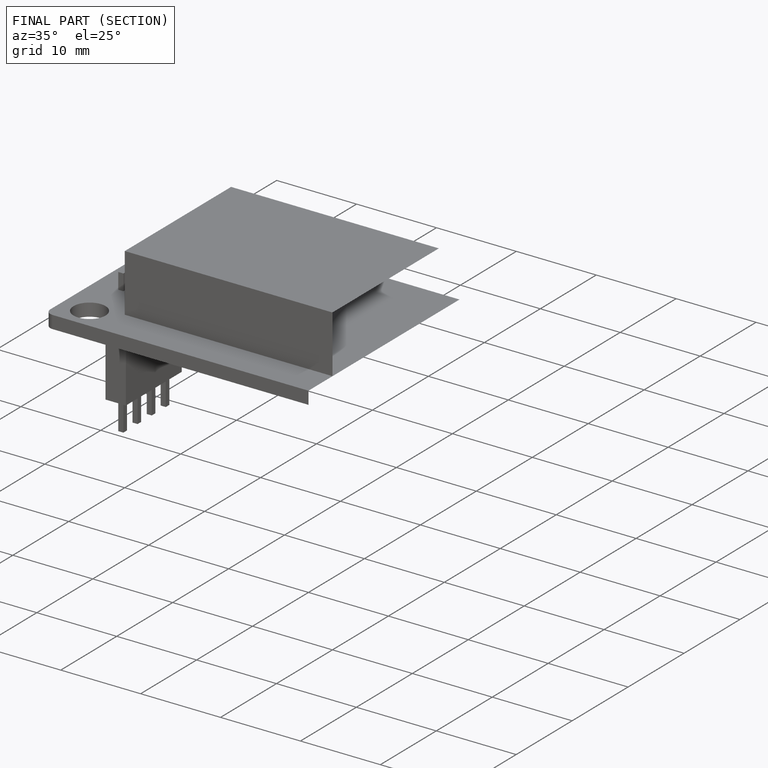
[diagram: finished part — half-section view (interior)]
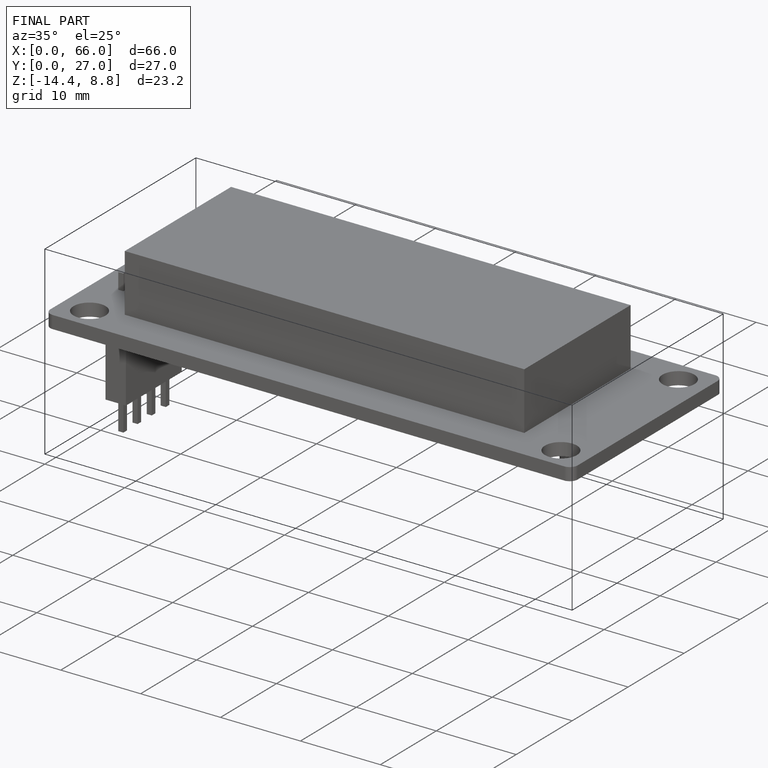
[diagram: finished part — iso view with bounding-box wireframe]
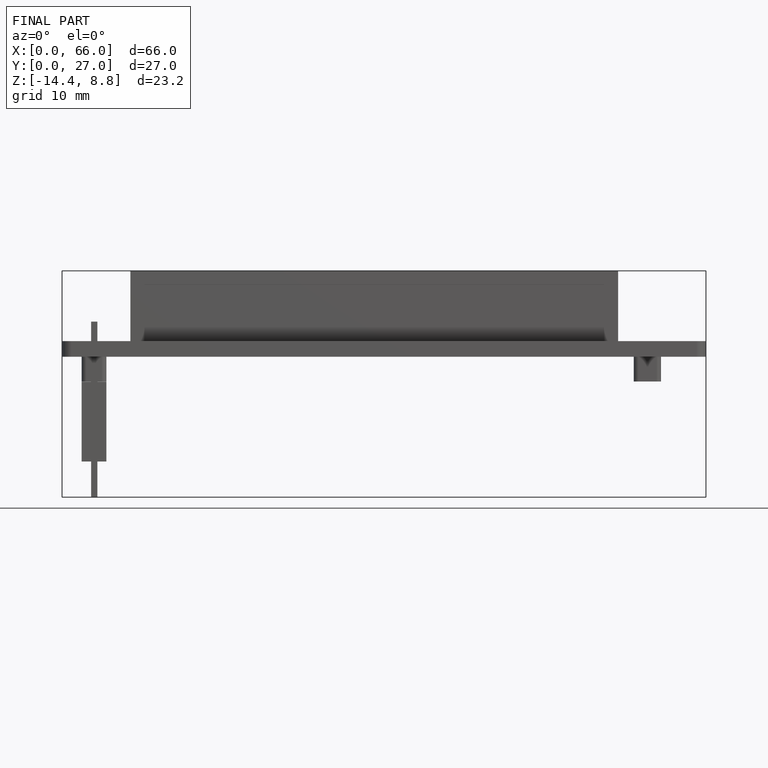
[diagram: finished part — front view with bounding-box wireframe]
